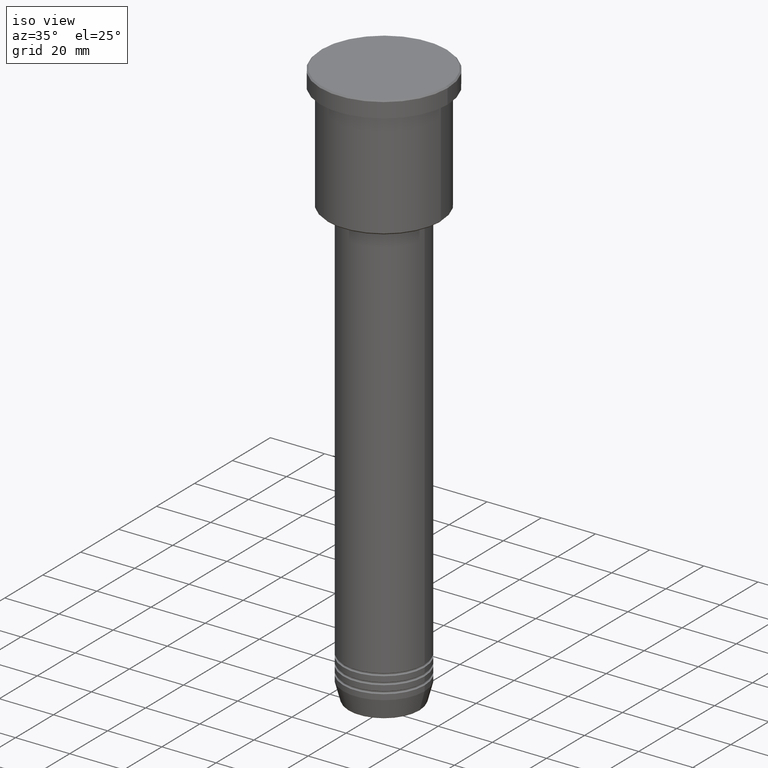
[diagram: clean part render]
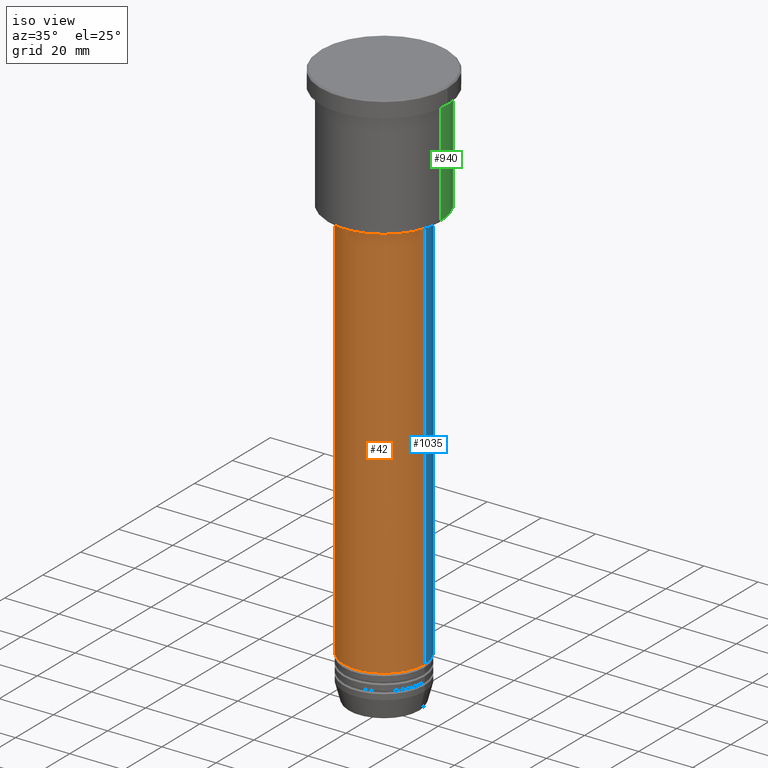
[diagram: same view with three faces highlighted in distinct colors, each labeled with its STEP entity id]
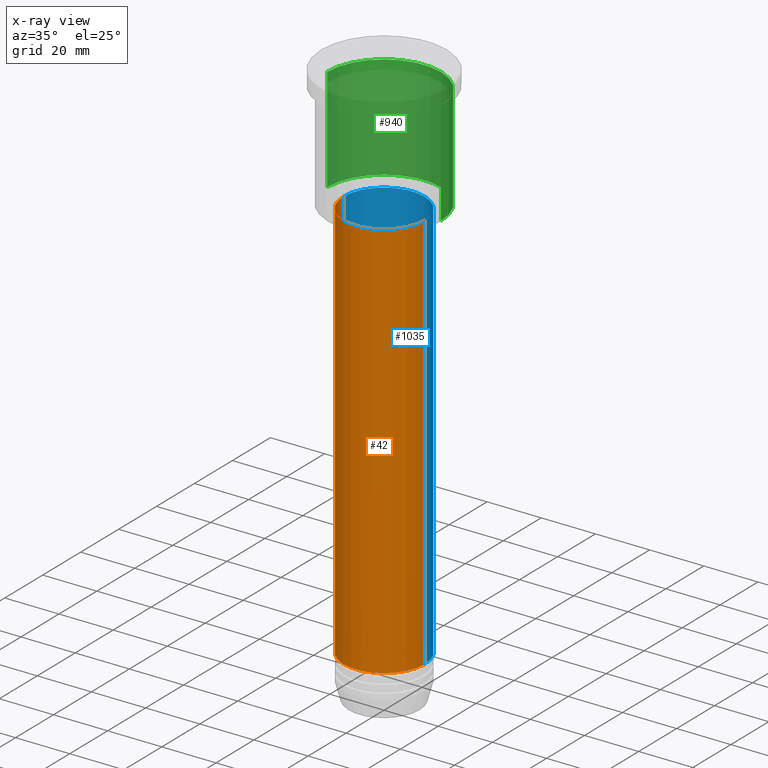
[diagram: x-ray of the same camera — body ghosted, the three highlighted faces saturated]
A machine part, iso view with three faces highlighted in distinct colors.
The next image is the same camera in x-ray (body ghosted, the three faces saturated) — at least one of them is partly hidden behind the body in this view.
Their STEP definitions:

[orange] entity #42 — the highlighted cylindrical surface (partial cylindrical patch) has radius 15 mm, axis along (-0, -0, 1).
#42 = ADVANCED_FACE ( 'NONE', ( #839 ), #650, .T. ) ;
#82 = CARTESIAN_POINT ( 'NONE',  ( 15.00000000000000000, 0.000000000000000000, -195.0000000000000000 ) ) ;
#95 = DIRECTION ( 'NONE',  ( 1.000000000000000000, 0.000000000000000000, 0.000000000000000000 ) ) ;
#145 = LINE ( 'NONE', #586, #277 ) ;
#153 = CARTESIAN_POINT ( 'NONE',  ( 0.000000000000000000, 0.000000000000000000, -195.0000000000000000 ) ) ;
#193 = ORIENTED_EDGE ( 'NONE', *, *, #890, .F. ) ;
#219 = ORIENTED_EDGE ( 'NONE', *, *, #927, .T. ) ;
#226 = CARTESIAN_POINT ( 'NONE',  ( -15.00000000000000000, 1.836970198721029589E-15, -47.00000000000002132 ) ) ;
#249 = VERTEX_POINT ( 'NONE', #956 ) ;
#255 = DIRECTION ( 'NONE',  ( -0.000000000000000000, -0.000000000000000000, 1.000000000000000000 ) ) ;
#256 = AXIS2_PLACEMENT_3D ( 'NONE', #153, #255, #596 ) ;
#258 = AXIS2_PLACEMENT_3D ( 'NONE', #265, #637, #95 ) ;
#265 = CARTESIAN_POINT ( 'NONE',  ( 0.000000000000000000, 0.000000000000000000, 0.000000000000000000 ) ) ;
#277 = VECTOR ( 'NONE', #1067, 1000.000000000000000 ) ;
#319 = DIRECTION ( 'NONE',  ( 1.000000000000000000, 0.000000000000000000, 0.000000000000000000 ) ) ;
#322 = EDGE_LOOP ( 'NONE', ( #518, #1040, #219, #193 ) ) ;
#426 = VERTEX_POINT ( 'NONE', #82 ) ;
#451 = CIRCLE ( 'NONE', #810, 15.00000000000000000 ) ;
#471 = CARTESIAN_POINT ( 'NONE',  ( -15.00000000000000000, 1.836970198721029589E-15, 0.000000000000000000 ) ) ;
#518 = ORIENTED_EDGE ( 'NONE', *, *, #965, .F. ) ;
#586 = CARTESIAN_POINT ( 'NONE',  ( 15.00000000000000000, 0.000000000000000000, 0.000000000000000000 ) ) ;
#596 = DIRECTION ( 'NONE',  ( 1.000000000000000000, 0.000000000000000000, 0.000000000000000000 ) ) ;
#637 = DIRECTION ( 'NONE',  ( -0.000000000000000000, -0.000000000000000000, 1.000000000000000000 ) ) ;
#650 = CYLINDRICAL_SURFACE ( 'NONE', #258, 15.00000000000000000 ) ;
#656 = VERTEX_POINT ( 'NONE', #226 ) ;
#663 = DIRECTION ( 'NONE',  ( -0.000000000000000000, -0.000000000000000000, 1.000000000000000000 ) ) ;
#681 = VERTEX_POINT ( 'NONE', #1130 ) ;
#686 = CIRCLE ( 'NONE', #256, 15.00000000000000000 ) ;
#810 = AXIS2_PLACEMENT_3D ( 'NONE', #1121, #663, #319 ) ;
#836 = DIRECTION ( 'NONE',  ( -0.000000000000000000, -0.000000000000000000, 1.000000000000000000 ) ) ;
#839 = FACE_OUTER_BOUND ( 'NONE', #322, .T. ) ;
#890 = EDGE_CURVE ( 'NONE', #656, #681, #451, .T. ) ;
#927 = EDGE_CURVE ( 'NONE', #426, #681, #145, .T. ) ;
#956 = CARTESIAN_POINT ( 'NONE',  ( -15.00000000000000000, 1.836970198721029589E-15, -195.0000000000000000 ) ) ;
#965 = EDGE_CURVE ( 'NONE', #249, #656, #1097, .T. ) ;
#1040 = ORIENTED_EDGE ( 'NONE', *, *, #1118, .T. ) ;
#1067 = DIRECTION ( 'NONE',  ( -0.000000000000000000, -0.000000000000000000, 1.000000000000000000 ) ) ;
#1097 = LINE ( 'NONE', #471, #1126 ) ;
#1118 = EDGE_CURVE ( 'NONE', #249, #426, #686, .T. ) ;
#1121 = CARTESIAN_POINT ( 'NONE',  ( 0.000000000000000000, 0.000000000000000000, -47.00000000000002132 ) ) ;
#1126 = VECTOR ( 'NONE', #836, 1000.000000000000000 ) ;
#1130 = CARTESIAN_POINT ( 'NONE',  ( 15.00000000000000000, 0.000000000000000000, -47.00000000000002132 ) ) ;

[blue] entity #1035 — the highlighted cylindrical surface (partial cylindrical patch) has radius 15 mm, axis along (-0, -0, 1).
#31 = DIRECTION ( 'NONE',  ( 1.000000000000000000, 0.000000000000000000, 0.000000000000000000 ) ) ;
#82 = CARTESIAN_POINT ( 'NONE',  ( 15.00000000000000000, 0.000000000000000000, -195.0000000000000000 ) ) ;
#145 = LINE ( 'NONE', #586, #277 ) ;
#222 = DIRECTION ( 'NONE',  ( 1.000000000000000000, 0.000000000000000000, 0.000000000000000000 ) ) ;
#226 = CARTESIAN_POINT ( 'NONE',  ( -15.00000000000000000, 1.836970198721029589E-15, -47.00000000000002132 ) ) ;
#230 = EDGE_CURVE ( 'NONE', #681, #656, #682, .T. ) ;
#235 = ORIENTED_EDGE ( 'NONE', *, *, #927, .F. ) ;
#249 = VERTEX_POINT ( 'NONE', #956 ) ;
#263 = DIRECTION ( 'NONE',  ( -0.000000000000000000, -0.000000000000000000, 1.000000000000000000 ) ) ;
#275 = AXIS2_PLACEMENT_3D ( 'NONE', #687, #1055, #222 ) ;
#277 = VECTOR ( 'NONE', #1067, 1000.000000000000000 ) ;
#426 = VERTEX_POINT ( 'NONE', #82 ) ;
#439 = ORIENTED_EDGE ( 'NONE', *, *, #965, .T. ) ;
#467 = ORIENTED_EDGE ( 'NONE', *, *, #230, .F. ) ;
#471 = CARTESIAN_POINT ( 'NONE',  ( -15.00000000000000000, 1.836970198721029589E-15, 0.000000000000000000 ) ) ;
#502 = CIRCLE ( 'NONE', #275, 15.00000000000000000 ) ;
#565 = EDGE_CURVE ( 'NONE', #426, #249, #502, .T. ) ;
#586 = CARTESIAN_POINT ( 'NONE',  ( 15.00000000000000000, 0.000000000000000000, 0.000000000000000000 ) ) ;
#623 = EDGE_LOOP ( 'NONE', ( #707, #439, #467, #235 ) ) ;
#656 = VERTEX_POINT ( 'NONE', #226 ) ;
#681 = VERTEX_POINT ( 'NONE', #1130 ) ;
#682 = CIRCLE ( 'NONE', #1087, 15.00000000000000000 ) ;
#687 = CARTESIAN_POINT ( 'NONE',  ( 0.000000000000000000, 0.000000000000000000, -195.0000000000000000 ) ) ;
#707 = ORIENTED_EDGE ( 'NONE', *, *, #565, .T. ) ;
#781 = CARTESIAN_POINT ( 'NONE',  ( 0.000000000000000000, 0.000000000000000000, -47.00000000000002132 ) ) ;
#835 = FACE_OUTER_BOUND ( 'NONE', #623, .T. ) ;
#836 = DIRECTION ( 'NONE',  ( -0.000000000000000000, -0.000000000000000000, 1.000000000000000000 ) ) ;
#914 = DIRECTION ( 'NONE',  ( 1.000000000000000000, 0.000000000000000000, 0.000000000000000000 ) ) ;
#927 = EDGE_CURVE ( 'NONE', #426, #681, #145, .T. ) ;
#932 = CARTESIAN_POINT ( 'NONE',  ( 0.000000000000000000, 0.000000000000000000, 0.000000000000000000 ) ) ;
#956 = CARTESIAN_POINT ( 'NONE',  ( -15.00000000000000000, 1.836970198721029589E-15, -195.0000000000000000 ) ) ;
#957 = AXIS2_PLACEMENT_3D ( 'NONE', #932, #263, #914 ) ;
#965 = EDGE_CURVE ( 'NONE', #249, #656, #1097, .T. ) ;
#1023 = CYLINDRICAL_SURFACE ( 'NONE', #957, 15.00000000000000000 ) ;
#1035 = ADVANCED_FACE ( 'NONE', ( #835 ), #1023, .T. ) ;
#1055 = DIRECTION ( 'NONE',  ( -0.000000000000000000, -0.000000000000000000, 1.000000000000000000 ) ) ;
#1067 = DIRECTION ( 'NONE',  ( -0.000000000000000000, -0.000000000000000000, 1.000000000000000000 ) ) ;
#1087 = AXIS2_PLACEMENT_3D ( 'NONE', #781, #1113, #31 ) ;
#1097 = LINE ( 'NONE', #471, #1126 ) ;
#1113 = DIRECTION ( 'NONE',  ( -0.000000000000000000, -0.000000000000000000, 1.000000000000000000 ) ) ;
#1126 = VECTOR ( 'NONE', #836, 1000.000000000000000 ) ;
#1130 = CARTESIAN_POINT ( 'NONE',  ( 15.00000000000000000, 0.000000000000000000, -47.00000000000002132 ) ) ;

[green] entity #940 — the highlighted cylindrical surface (partial cylindrical patch) has radius 21 mm, axis along (-0, -0, 1).
#3 = DIRECTION ( 'NONE',  ( 1.000000000000000000, 0.000000000000000000, 0.000000000000000000 ) ) ;
#15 = DIRECTION ( 'NONE',  ( -0.000000000000000000, -0.000000000000000000, 1.000000000000000000 ) ) ;
#28 = CIRCLE ( 'NONE', #417, 21.00000000000000000 ) ;
#60 = ORIENTED_EDGE ( 'NONE', *, *, #505, .T. ) ;
#140 = ORIENTED_EDGE ( 'NONE', *, *, #294, .F. ) ;
#208 = CARTESIAN_POINT ( 'NONE',  ( 21.00000000000000000, 0.000000000000000000, 0.000000000000000000 ) ) ;
#221 = DIRECTION ( 'NONE',  ( -0.000000000000000000, -0.000000000000000000, 1.000000000000000000 ) ) ;
#251 = DIRECTION ( 'NONE',  ( -0.000000000000000000, -0.000000000000000000, 1.000000000000000000 ) ) ;
#293 = ORIENTED_EDGE ( 'NONE', *, *, #841, .T. ) ;
#294 = EDGE_CURVE ( 'NONE', #1000, #404, #869, .T. ) ;
#297 = VECTOR ( 'NONE', #970, 1000.000000000000000 ) ;
#307 = CARTESIAN_POINT ( 'NONE',  ( -21.00000000000000000, 2.571758278209441661E-15, -45.50000000000001421 ) ) ;
#333 = LINE ( 'NONE', #515, #297 ) ;
#349 = DIRECTION ( 'NONE',  ( 1.000000000000000000, 0.000000000000000000, 0.000000000000000000 ) ) ;
#356 = CIRCLE ( 'NONE', #665, 21.00000000000000000 ) ;
#404 = VERTEX_POINT ( 'NONE', #709 ) ;
#417 = AXIS2_PLACEMENT_3D ( 'NONE', #961, #15, #3 ) ;
#447 = CARTESIAN_POINT ( 'NONE',  ( 21.00000000000000000, 0.000000000000000000, -45.50000000000001421 ) ) ;
#505 = EDGE_CURVE ( 'NONE', #1000, #1078, #356, .T. ) ;
#515 = CARTESIAN_POINT ( 'NONE',  ( -21.00000000000000000, 2.571758278209441661E-15, 0.000000000000000000 ) ) ;
#517 = FACE_OUTER_BOUND ( 'NONE', #962, .T. ) ;
#520 = CARTESIAN_POINT ( 'NONE',  ( 0.000000000000000000, 0.000000000000000000, -45.50000000000001421 ) ) ;
#572 = VERTEX_POINT ( 'NONE', #968 ) ;
#597 = DIRECTION ( 'NONE',  ( -0.000000000000000000, -0.000000000000000000, 1.000000000000000000 ) ) ;
#665 = AXIS2_PLACEMENT_3D ( 'NONE', #520, #251, #1008 ) ;
#689 = CARTESIAN_POINT ( 'NONE',  ( 0.000000000000000000, 0.000000000000000000, 0.000000000000000000 ) ) ;
#706 = CYLINDRICAL_SURFACE ( 'NONE', #1032, 21.00000000000000000 ) ;
#709 = CARTESIAN_POINT ( 'NONE',  ( 21.00000000000000000, 0.000000000000000000, -6.999999999999994671 ) ) ;
#773 = ORIENTED_EDGE ( 'NONE', *, *, #858, .F. ) ;
#841 = EDGE_CURVE ( 'NONE', #1078, #572, #333, .T. ) ;
#858 = EDGE_CURVE ( 'NONE', #404, #572, #28, .T. ) ;
#869 = LINE ( 'NONE', #208, #1156 ) ;
#940 = ADVANCED_FACE ( 'NONE', ( #517 ), #706, .T. ) ;
#961 = CARTESIAN_POINT ( 'NONE',  ( 0.000000000000000000, 0.000000000000000000, -6.999999999999994671 ) ) ;
#962 = EDGE_LOOP ( 'NONE', ( #60, #293, #773, #140 ) ) ;
#968 = CARTESIAN_POINT ( 'NONE',  ( -21.00000000000000000, 2.571758278209441661E-15, -6.999999999999994671 ) ) ;
#970 = DIRECTION ( 'NONE',  ( -0.000000000000000000, -0.000000000000000000, 1.000000000000000000 ) ) ;
#1000 = VERTEX_POINT ( 'NONE', #447 ) ;
#1008 = DIRECTION ( 'NONE',  ( -1.000000000000000000, 0.000000000000000000, 0.000000000000000000 ) ) ;
#1032 = AXIS2_PLACEMENT_3D ( 'NONE', #689, #597, #349 ) ;
#1078 = VERTEX_POINT ( 'NONE', #307 ) ;
#1156 = VECTOR ( 'NONE', #221, 1000.000000000000000 ) ;